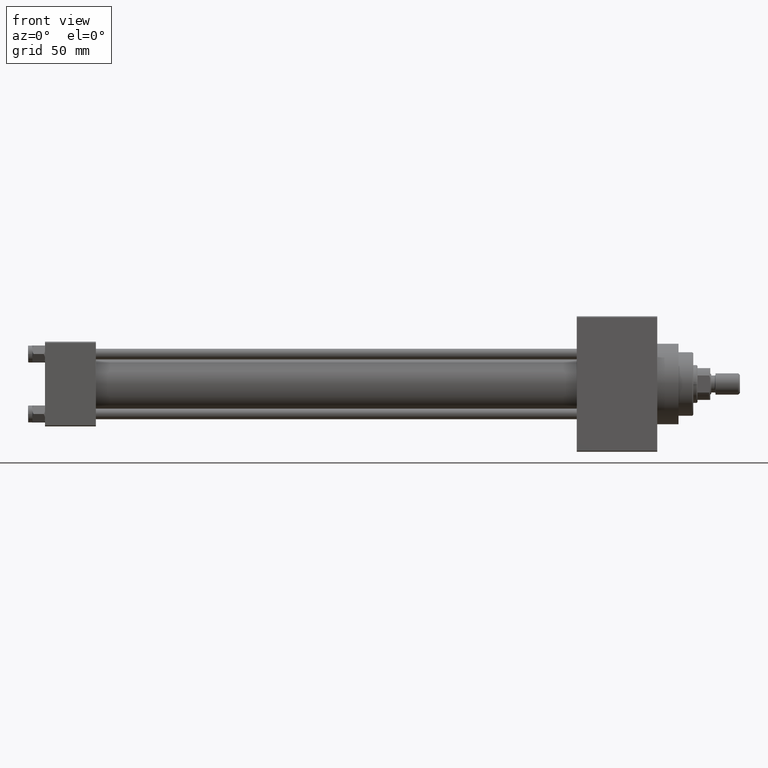
[diagram: clean part render]
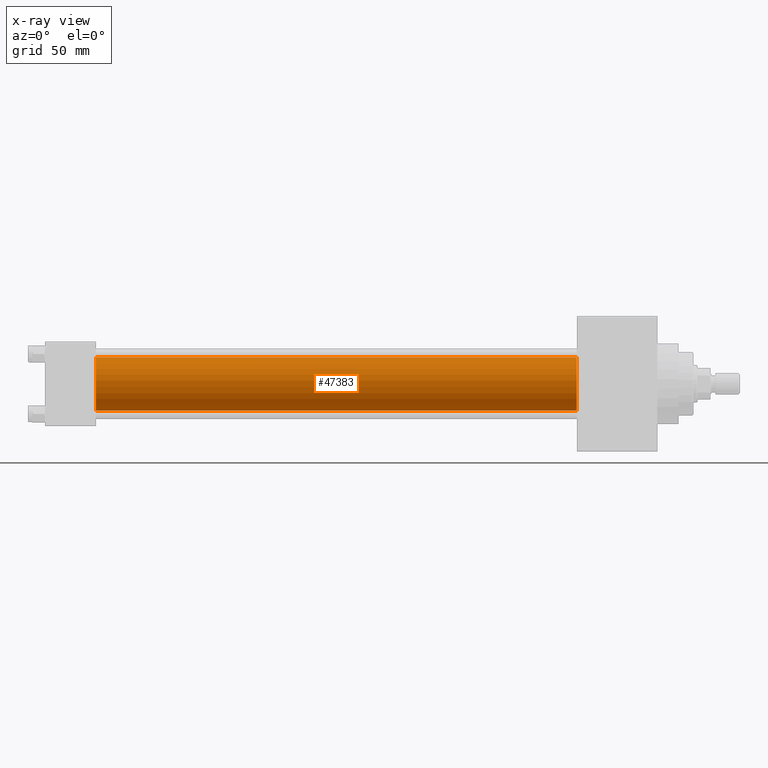
[diagram: x-ray — body ghosted, one internal face saturated and labeled with its STEP entity id]
A machine part, front view, then the same camera in x-ray: the body is ghosted and one INTERNAL B-rep face — a face not visible from any outside direction — is saturated and labeled: STEP entity #47383.
In plain terms, the highlighted cylindrical surface (edge-blend (fillet) strip) has radius 12.5 mm, axis along (-1, -0, -0).
Its self-contained STEP definition (entity closure, byte-faithful):
#35 = EDGE_CURVE ( 'NONE', #23745, #42299, #14396, .T. ) ;
#120 = CARTESIAN_POINT ( 'NONE',  ( 251.0000000000000000, -2.602085213965210642E-15, 0.000000000000000000 ) ) ;
#1195 = VERTEX_POINT ( 'NONE', #22746 ) ;
#2093 = ORIENTED_EDGE ( 'NONE', *, *, #35, .T. ) ;
#2129 = DIRECTION ( 'NONE',  ( 1.000000000000000000, 0.000000000000000000, 0.000000000000000000 ) ) ;
#4177 = CARTESIAN_POINT ( 'NONE',  ( 251.0000000000000000, -2.602085213965210642E-15, 12.49999999999999645 ) ) ;
#4969 = VECTOR ( 'NONE', #37149, 1000.000000000000000 ) ;
#6226 = ORIENTED_EDGE ( 'NONE', *, *, #6748, .F. ) ;
#6372 = DIRECTION ( 'NONE',  ( 0.000000000000000000, 0.000000000000000000, -1.000000000000000000 ) ) ;
#6748 = EDGE_CURVE ( 'NONE', #1195, #17541, #23055, .T. ) ;
#7965 = ORIENTED_EDGE ( 'NONE', *, *, #18477, .T. ) ;
#8871 = ORIENTED_EDGE ( 'NONE', *, *, #39396, .F. ) ;
#9610 = DIRECTION ( 'NONE',  ( 1.000000000000000000, 0.000000000000000000, 0.000000000000000000 ) ) ;
#13217 = CARTESIAN_POINT ( 'NONE',  ( 251.0000000000000000, -1.071276715031019909E-15, -12.49999999999999645 ) ) ;
#13863 = VECTOR ( 'NONE', #18707, 1000.000000000000000 ) ;
#14396 = CIRCLE ( 'NONE', #25551, 12.49999999999999645 ) ;
#14892 = FACE_OUTER_BOUND ( 'NONE', #27735, .T. ) ;
#16326 = AXIS2_PLACEMENT_3D ( 'NONE', #120, #45908, #46388 ) ;
#17541 = VERTEX_POINT ( 'NONE', #23394 ) ;
#18477 = EDGE_CURVE ( 'NONE', #42299, #17541, #47496, .T. ) ;
#18707 = DIRECTION ( 'NONE',  ( -1.000000000000000000, -0.000000000000000000, -0.000000000000000000 ) ) ;
#22746 = CARTESIAN_POINT ( 'NONE',  ( 24.00000000000000000, -2.602085213965210642E-15, 12.49999999999999645 ) ) ;
#23055 = CIRCLE ( 'NONE', #23173, 12.49999999999999645 ) ;
#23173 = AXIS2_PLACEMENT_3D ( 'NONE', #35902, #2129, #6372 ) ;
#23394 = CARTESIAN_POINT ( 'NONE',  ( 24.00000000000000000, -1.071276715031019909E-15, -12.49999999999999645 ) ) ;
#23745 = VERTEX_POINT ( 'NONE', #4177 ) ;
#24848 = DIRECTION ( 'NONE',  ( 0.000000000000000000, 0.000000000000000000, -1.000000000000000000 ) ) ;
#25551 = AXIS2_PLACEMENT_3D ( 'NONE', #43875, #9610, #24848 ) ;
#27735 = EDGE_LOOP ( 'NONE', ( #2093, #7965, #6226, #8871 ) ) ;
#30140 = CYLINDRICAL_SURFACE ( 'NONE', #16326, 12.49999999999999645 ) ;
#30309 = CARTESIAN_POINT ( 'NONE',  ( 251.0000000000000000, -1.071276715031019909E-15, -12.49999999999999645 ) ) ;
#33633 = LINE ( 'NONE', #40663, #4969 ) ;
#35902 = CARTESIAN_POINT ( 'NONE',  ( 24.00000000000000000, -2.602085213965210642E-15, 0.000000000000000000 ) ) ;
#37149 = DIRECTION ( 'NONE',  ( -1.000000000000000000, -0.000000000000000000, -0.000000000000000000 ) ) ;
#39396 = EDGE_CURVE ( 'NONE', #23745, #1195, #33633, .T. ) ;
#40663 = CARTESIAN_POINT ( 'NONE',  ( 251.0000000000000000, -2.602085213965210642E-15, 12.49999999999999645 ) ) ;
#42299 = VERTEX_POINT ( 'NONE', #30309 ) ;
#43875 = CARTESIAN_POINT ( 'NONE',  ( 251.0000000000000000, -2.602085213965210642E-15, 0.000000000000000000 ) ) ;
#45908 = DIRECTION ( 'NONE',  ( -1.000000000000000000, -0.000000000000000000, -0.000000000000000000 ) ) ;
#46388 = DIRECTION ( 'NONE',  ( 0.000000000000000000, 0.000000000000000000, 1.000000000000000000 ) ) ;
#47383 = ADVANCED_FACE ( 'NONE', ( #14892 ), #30140, .F. ) ;
#47496 = LINE ( 'NONE', #13217, #13863 ) ;